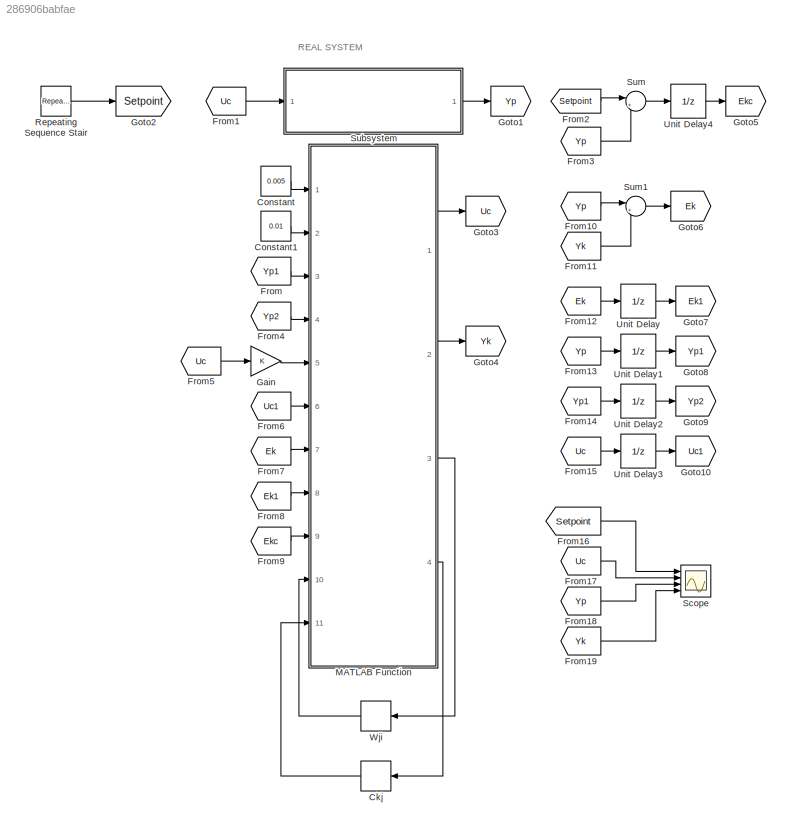
MODEL slx_286906babfae
KIND model
CONFIG AbsTol = auto
CONFIG EnableMultiTasking = off
CONFIG FixedStep = 0.01
CONFIG MaxStep = auto
CONFIG MinStep = auto
CONFIG RelTol = 0.1e-3
CONFIG SampleTimeConstraint = Unconstrained
CONFIG Solver = FixedStepAuto
CONFIG SolverName = FixedStepAuto
CONFIG StartTime = 0.0
CONFIG StopTime = 600
BLOCK [Memory] Ckj
  InitialCondition = rand(1,10)
  NameLocation = top
BLOCK [Constant] Constant
  Value = 0.005
BLOCK [Constant] Constant1
  Value = 0.01
BLOCK [From] From
  GotoTag = Yp1
BLOCK [From] From1
  GotoTag = Uc
BLOCK [From] From10
  GotoTag = Yp
BLOCK [From] From11
  GotoTag = Yk
BLOCK [From] From12
  GotoTag = Ek
BLOCK [From] From13
  GotoTag = Yp
BLOCK [From] From14
  GotoTag = Yp1
BLOCK [From] From15
  GotoTag = Uc
BLOCK [From] From16
  GotoTag = Setpoint
BLOCK [From] From17
  GotoTag = Uc
BLOCK [From] From18
  GotoTag = Yp
BLOCK [From] From19
  GotoTag = Yk
BLOCK [From] From2
  GotoTag = Setpoint
BLOCK [From] From3
  GotoTag = Yp
BLOCK [From] From4
  GotoTag = Yp2
BLOCK [From] From5
  GotoTag = Uc
BLOCK [From] From6
  GotoTag = Uc1
BLOCK [From] From7
  GotoTag = Ek
BLOCK [From] From8
  GotoTag = Ek1
BLOCK [From] From9
  GotoTag = Ekc
BLOCK [Gain] Gain
BLOCK [Goto] Goto1
  GotoTag = Yp
BLOCK [Goto] Goto10
  GotoTag = Uc1
BLOCK [Goto] Goto2
  GotoTag = Setpoint
BLOCK [Goto] Goto3
  GotoTag = Uc
BLOCK [Goto] Goto4
  GotoTag = Yk
BLOCK [Goto] Goto5
  GotoTag = Ekc
BLOCK [Goto] Goto6
  GotoTag = Ek
BLOCK [Goto] Goto7
  GotoTag = Ek1
BLOCK [Goto] Goto8
  GotoTag = Yp1
BLOCK [Goto] Goto9
  GotoTag = Yp2
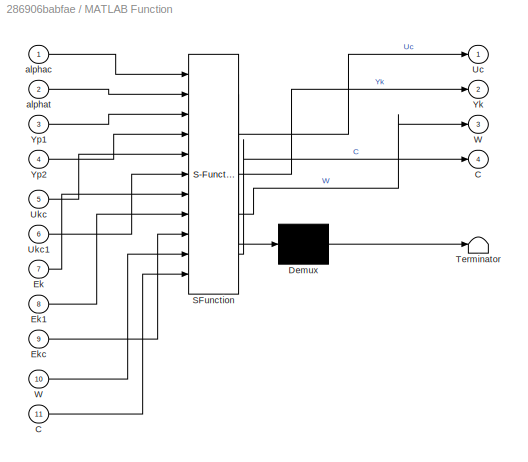
BLOCK [SubSystem] MATLAB Function
  ErrorFcn = Stateflow.Translate.translate
  PermitHierarchicalResolution = ExplicitOnly
  Ports = [11, 4]
  RequestExecContextInheritance = off
  SFBlockType = MATLAB Function
  TreatAsAtomicUnit = on
BLOCK [Demux] MATLAB Function/ Demux 
  Outputs = 1
  Ports = [1, 1]
BLOCK [S-Function] MATLAB Function/ SFunction 
  EnableBusSupport = on
  FunctionName = sf_sfun
  PortCounts = [11 5]
  Ports = [11, 5]
  SFcnIsStateOwnerBlock = off
  SFunctionDeploymentMode = off
  Tag = Stateflow S-Function 2
BLOCK [Terminator] MATLAB Function/ Terminator 
BLOCK [Outport] MATLAB Function/C
  Port = 4
BLOCK [Inport] MATLAB Function/C 
  Port = 11
BLOCK [Inport] MATLAB Function/Ek
  Port = 7
BLOCK [Inport] MATLAB Function/Ek1
  Port = 8
BLOCK [Inport] MATLAB Function/Ekc
  Port = 9
BLOCK [Outport] MATLAB Function/Uc
BLOCK [Inport] MATLAB Function/Ukc
  Port = 5
BLOCK [Inport] MATLAB Function/Ukc1
  Port = 6
BLOCK [Outport] MATLAB Function/W
  Port = 3
BLOCK [Inport] MATLAB Function/W 
  Port = 10
BLOCK [Outport] MATLAB Function/Yk
  Port = 2
BLOCK [Inport] MATLAB Function/Yp1
  Port = 3
BLOCK [Inport] MATLAB Function/Yp2
  Port = 4
BLOCK [Inport] MATLAB Function/alphac
BLOCK [Inport] MATLAB Function/alphat
  Port = 2
BLOCK [Reference] Repeating Sequence Stair  REF=simulink/Sources/Repeating
Sequence
Stair
  Ports = [0, 1]
  SourceBlock = simulink/Sources/Repeating\nSequence\nStair
  SourceProductBaseCode = SL
  SourceType = Repeating Sequence Stair
BLOCK [Scope] Scope
  Floating = off
  NumInputPorts = 4
  Ports = [4]
  ScopeSpecificationString = Simulink.scopes.TimeScopeBlockCfg('CurrentConfiguration', extmgr.ConfigurationSet(extmgr.Configuration('Core','General UI',true),extmgr.Configuration('Core','Source UI',true),extmgr.Configuration('Sources','WiredSimulink',true),extmgr.Configuration('Visuals','Time Domain',true,'SerializedDisplays',{struct('MinYLimReal','-0.125','MaxYLimReal','1.125','YLabelReal','','MinYLimMag','0.00000','MaxYLimM...<+1433ch>
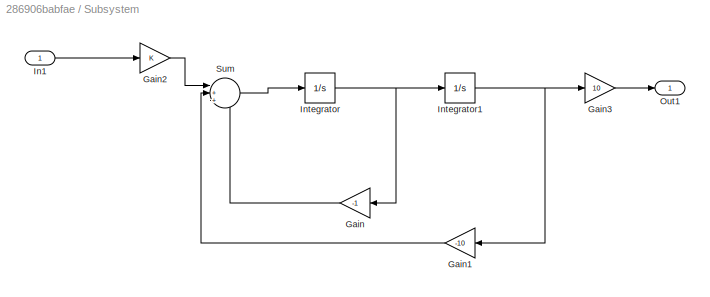
BLOCK [SubSystem] Subsystem
  Ports = [1, 1]
  RequestExecContextInheritance = off
BLOCK [Gain] Subsystem/Gain
  Gain = -1
  NameLocation = top
BLOCK [Gain] Subsystem/Gain1
  Gain = -10
  NameLocation = top
BLOCK [Gain] Subsystem/Gain2
BLOCK [Gain] Subsystem/Gain3
  Gain = 10
BLOCK [Inport] Subsystem/In1
BLOCK [Integrator] Subsystem/Integrator
  Ports = [1, 1]
BLOCK [Integrator] Subsystem/Integrator1
  Ports = [1, 1]
BLOCK [Outport] Subsystem/Out1
  VectorParamsAs1DForOutWhenUnconnected = off
BLOCK [Sum] Subsystem/Sum
  Inputs = |+++
  Ports = [3, 1]
BLOCK [Sum] Sum
  Inputs = |+-
  Ports = [2, 1]
BLOCK [Sum] Sum1
  Inputs = |+-
  Ports = [2, 1]
BLOCK [UnitDelay] Unit Delay
  HasFrameUpgradeWarning = on
  SampleTime = -1
BLOCK [UnitDelay] Unit Delay1
  HasFrameUpgradeWarning = on
  SampleTime = -1
BLOCK [UnitDelay] Unit Delay2
  HasFrameUpgradeWarning = on
  SampleTime = -1
BLOCK [UnitDelay] Unit Delay3
  HasFrameUpgradeWarning = on
  SampleTime = -1
BLOCK [UnitDelay] Unit Delay4
  HasFrameUpgradeWarning = on
  SampleTime = -1
BLOCK [Memory] Wji
  InitialCondition = rand(10,6)
  NameLocation = top
ANNOTATION (root): REAL SYSTEM
LINE Ckj:1 -> MATLAB Function:11
LINE Constant1:1 -> MATLAB Function:2
LINE Constant:1 -> MATLAB Function:1
LINE From10:1 -> Sum1:1
LINE From11:1 -> Sum1:2
LINE From12:1 -> Unit Delay:1
LINE From13:1 -> Unit Delay1:1
LINE From14:1 -> Unit Delay2:1
LINE From15:1 -> Unit Delay3:1
LINE From16:1 -> Scope:1
LINE From17:1 -> Scope:2
LINE From18:1 -> Scope:3
LINE From19:1 -> Scope:4
LINE From1:1 -> Subsystem:1
LINE From2:1 -> Sum:1
LINE From3:1 -> Sum:2
LINE From4:1 -> MATLAB Function:4
LINE From5:1 -> Gain:1
LINE From6:1 -> MATLAB Function:6
LINE From7:1 -> MATLAB Function:7
LINE From8:1 -> MATLAB Function:8
LINE From9:1 -> MATLAB Function:9
LINE From:1 -> MATLAB Function:3
LINE Gain:1 -> MATLAB Function:5
LINE MATLAB Function:1 -> Goto3:1
LINE MATLAB Function:2 -> Goto4:1
LINE MATLAB Function:3 -> Wji:1
LINE MATLAB Function:4 -> Ckj:1
LINE Repeating Sequence Stair:1 -> Goto2:1
LINE Subsystem/Gain1:1 -> Subsystem/Sum:2
LINE Subsystem/Gain2:1 -> Subsystem/Sum:1
LINE Subsystem/Gain3:1 -> Subsystem/Out1:1
LINE Subsystem/Gain:1 -> Subsystem/Sum:3
LINE Subsystem/In1:1 -> Subsystem/Gain2:1
NET Subsystem/Integrator1:1 -> Subsystem/Gain1:1, Subsystem/Gain3:1
NET Subsystem/Integrator:1 -> Subsystem/Gain:1, Subsystem/Integrator1:1
LINE Subsystem/Sum:1 -> Subsystem/Integrator:1
LINE Subsystem:1 -> Goto1:1
LINE Sum1:1 -> Goto6:1
LINE Sum:1 -> Unit Delay4:1
LINE Unit Delay1:1 -> Goto8:1
LINE Unit Delay2:1 -> Goto9:1
LINE Unit Delay3:1 -> Goto10:1
LINE Unit Delay4:1 -> Goto5:1
LINE Unit Delay:1 -> Goto7:1
LINE Wji:1 -> MATLAB Function:10
note: NET lines group one-source signal fan-out (src -> all destinations, sorted); 1:1 wires keep LINE
CHART MATLAB Function states=1 transitions=1
  STATE_LABEL 'eML_blk_kernel()'
  STATE_LABEL 'SCRIPT:\nfunction [Uc, Yk, W, C] = fcn(alphac, alphat, Yp1, Yp2, Ukc, Ukc1, Ek, Ek1, Ekc, W, C)\n    %{\n        This is a function that calculate the non-parametric identification \n        of a system and then get the right control signal to manipulate\n        the system behavior (Adaptative controller).\n\n        :param alphat: The learning power of the non-parametric identification\n                ...<+1116ch>'
CHART  states=0 transitions=0
